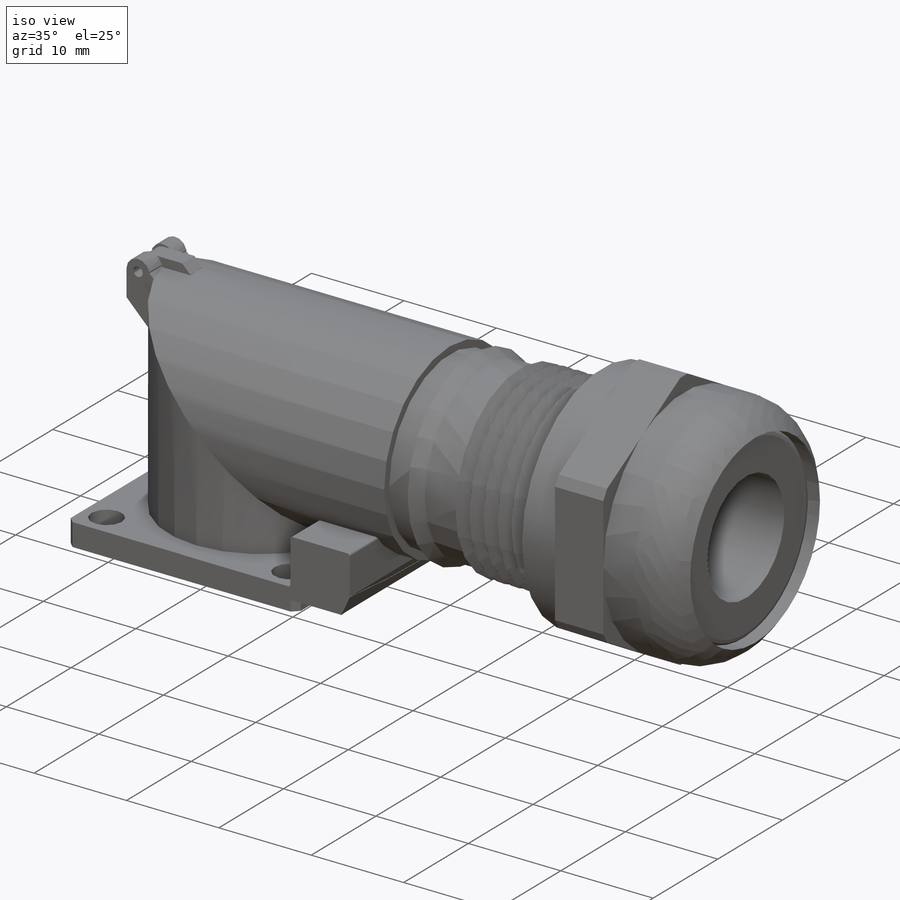
[diagram: iso view]
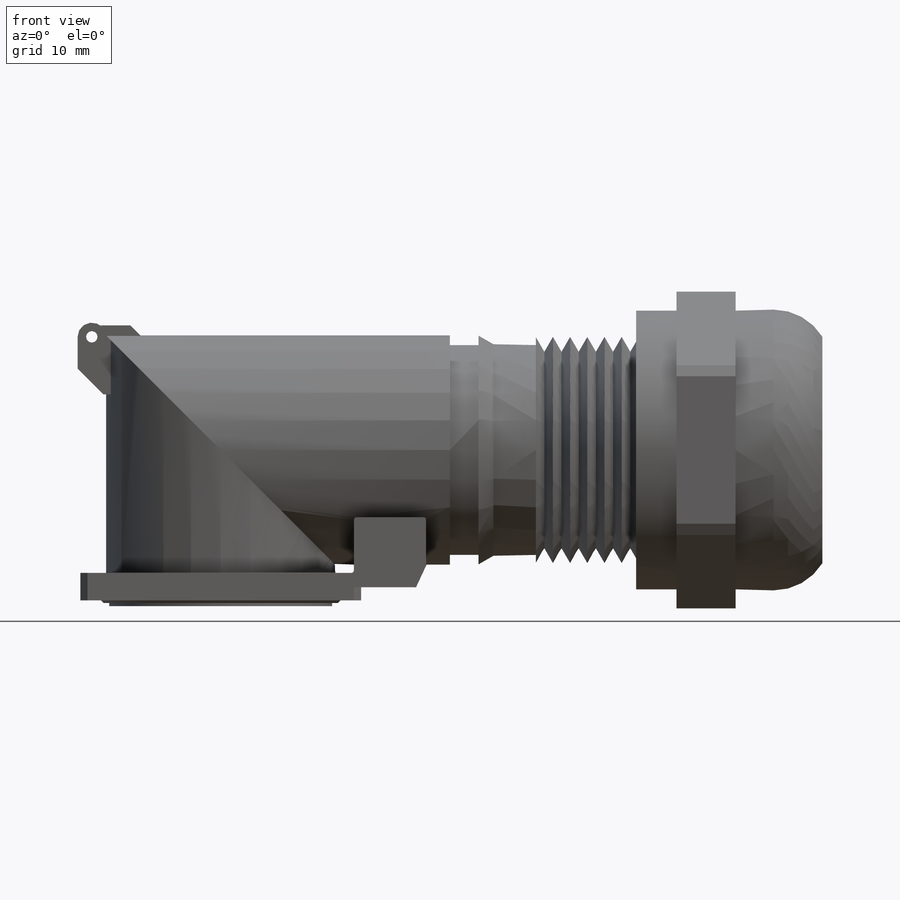
[diagram: front view]
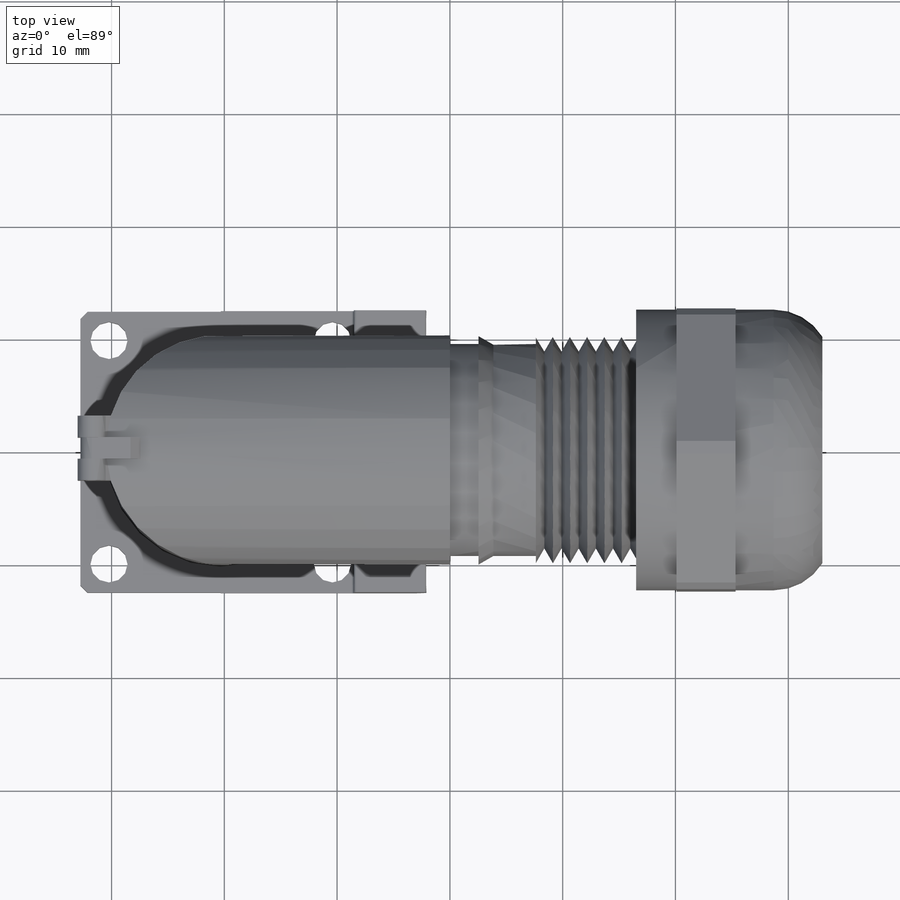
[diagram: top view]
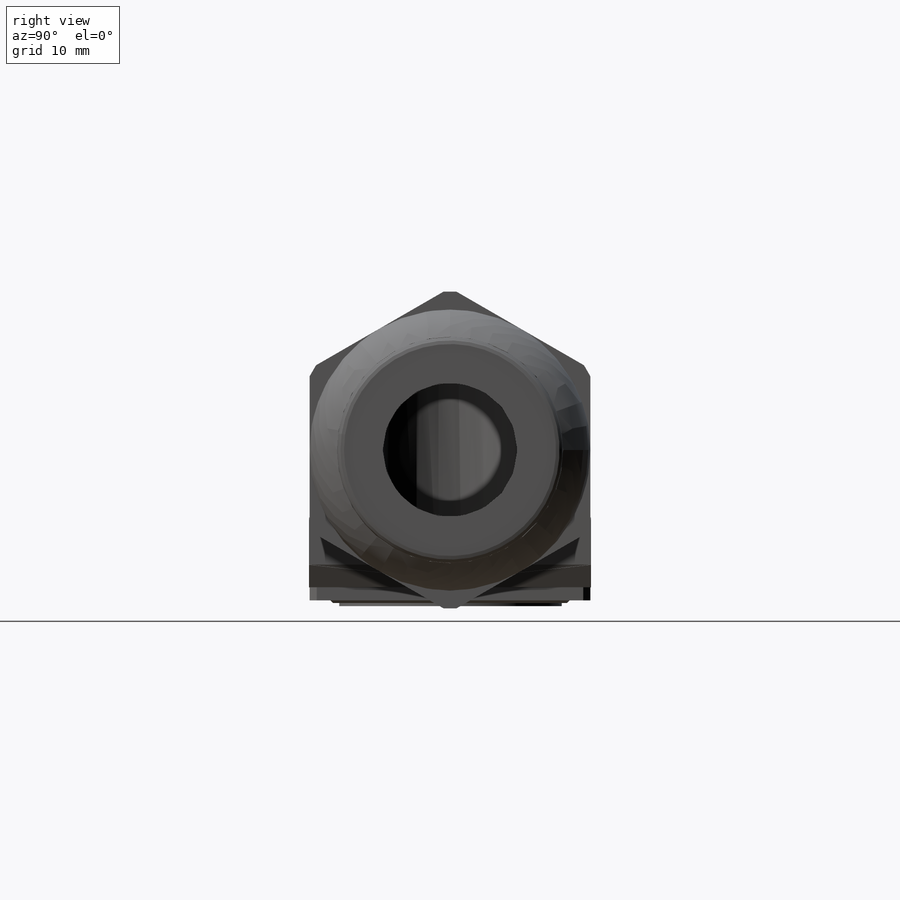
[diagram: right view]
SOLIDWORKS PART (.sldprt)
format: sldprt  version: not decoded by parser v0  size: 663,040 bytes
history: native  units: mm
features: sketch x21, extrude x8, revolve x6, cut_extrude x3, fillet x2, cut_revolve x2, pattern_linear x2, material x1, sweep x1, mirror x1, chamfer x1, plane x1 (+13 scaffold rows collapsed)
feature tree (62):
  scaffold x13  (default folders/planes/origin — collapsed)
  material  "Material <not specified>"
  sketch  "Sketch1"  dims[c1.L/2+=39.624mm c1.H-=17.018mm c1.H/2=11.049mm c1.A/2-=12.192mm c2.L/2+=20.32mm c2.H/2=11.049mm]
  sketch  "Sketch2"  dims[c1.radius=1.016mm c1.D3=1.27mm c1.D2=0.635mm c1.CableDia=11.938mm c1.A=20.32mm c1.D1=~4.536374mm c2.D1=45.0deg c2.H=22.098mm c3.D1=~6.427663mm c4.D1=135.0deg c4.H=22.098mm]
  sweep  "Sweep1"
  sketch  "Sketch3"  dims[c1.D1=1.016mm c1.D2=0.635mm c1.D3=1.016mm c1.D5=1.016mm c1.H=22.098mm c2.D2=~4.112696mm c3.D2=45.0deg c3.D4=3.048mm c3.D5=1.27mm c4.D2=~2.155261mm c5.D2=45.0deg c5.D4=4.318mm c5.D5=22.098mm c6.D2=~2.499492mm c7.D2=135.0deg c7.D6=3.048mm c7.D7=2.54mm]
  extrude  "Extrude1"  Depth=1.905mm
  sketch  "Sketch4"  dims[c1.D3=~1.26097mm c1.D1=5.08mm c1.D2=0.127mm c2.D1=2.286mm c2.D4=2.286mm c3.D4=135.0deg c3.D5=2.921mm c4.D5=~145.684292deg c4.D6=~4.235989mm c5.D6=~79.315708deg c5.D5=~6.72197mm c6.D6=5.207mm]
  extrude  "Extrude2"  Depth=1.905mm
  mirror  "Mirror1"
  sketch  "Sketch5"  dims[D3=3.302mm D4=2.4mm D1=24.892mm D2=19.812mm]
  extrude  "Extrude3"  Depth=0.0254mm
  chamfer  "Chamfer1"  Distance=0.635mm Angle=45deg
  sketch  "Sketch6"  dims[c1.D1=12.7mm c1.D2=1.27mm c1.D3=~5.62347mm c2.D3=120.0deg c2.D4=8.89mm c2.D5=~0.00254mm c2.D6=0.635mm c2.D1=4.2926mm c3.D1=25.0deg c3.D3=3.81mm]
  extrude  "Extrude4"  Depth=25.00001mm
  fillet  "Fillet1"  Radius=0.2286mm
  sketch  "Sketch7"  dims[D1=0.0mm]
  extrude  "Extrude5"  [1 undecoded]
  cut_extrude  "Cut-Extrude3"  [1 undecoded]
  sketch  "Sketch7<2>"  dims[D1=1.27mm]
  sketch  "Sketch8"
  extrude  "Extrude6"  Depth=25.0001mm
  sketch  "Sketch9"  dims[D1=1.016mm]
  extrude  "Extrude7"  Depth=0.0381mm
  sketch  "Sketch10"  dims[c1.L=66.04mm c1.D2=0.762mm c1.ThDia=19.812mm c1.E=~28.113318mm c1.Nutwidth=~5.232597mm c1.D3=~7.701334mm c1.D4=0.762mm c2.D4=30.0deg c2.D5=2.54mm c2.D6=24.892mm c2.D7=7.62mm c2.D8=8.89mm c2.NPT=20.066mm]
  revolve  "Revolve1"  Angle=360deg
  sketch  "Sketch16"  dims[D2=1.016mm D1=2.032mm]
  revolve  "Revolve3"  Angle=360deg
  sketch  "Sketch20"  dims[D2=0.635mm D1=1.016mm]
  revolve  "Revolve5"  Angle=360deg
  fillet  "Fillet2"  Radius=5.08mm
  sketch  "Sketch11"  dims[D1=0.0mm]
  cut_extrude  "Cut-Extrude1"  [1 undecoded]
  sketch  "Sketch17"  dims[c1.D1=20.066mm c2.D1=30.0deg c2.D2=~4.316189mm c3.D2=60.0deg c3.H=~1.303058mm]
  cut_revolve  "Cut-Revolve1"  Angle=360deg
  pattern_linear  "LPattern1"  Count1=7 Count2=1 Spacing1=1.524mm Spacing2=50mm Pitch=1.524mm
  sketch  "Sketch12"  dims[E1=24.892mm E=24.892mm]
  cut_extrude  "Cut-Extrude2"  [1 undecoded]
  plane  "Plane1"
  sketch  "Sketch13"  dims[D1=0.0mm]
  extrude  "Extrude8"  Depth=1.27mm
  sketch  "Sketch15"  dims[c1.D3=~0.982959mm c1.D1=0.635mm c1.D2=0.508mm c1.A=20.066mm c1.D=6.096mm c2.D3=~6.369853mm]
  revolve  "Revolve2"  Angle=360deg
  sketch  "Sketch19"  dims[D1=1.524mm]
  revolve  "Revolve4"  Angle=360deg
  sketch  "Sketch18"  dims[c1.D1=21.082mm c2.D1=30.0deg c2.D2=~0.998827mm c3.D2=60.0deg c3.H=~1.303058mm c3.D1=1.27mm c3.D3=23.622mm c4.D3=30.0deg]
  cut_revolve  "Cut-Revolve2"  Angle=360deg
  pattern_linear  "LPattern2"  Count1=4 Count2=1 Spacing1=1.524mm Spacing2=50mm Pitch=1.524mm
  sketch  "Sketch21"  dims[c1.D1=19.812mm c1.D2=~0.314439mm c2.D1=0.762mm c2.D2=19.812mm c3.D1=0.508mm]
  revolve  "Revolve6"  Angle=360deg
decode coverage: 40 of 47 modeling features carry decoded parameters
note: ~ marks probable driven/reference dimensions
note: 4 parameter values undecoded
summary: no parameter record found for 4 features
note: suppression state not decoded; provenance and decode notes live in map.json
